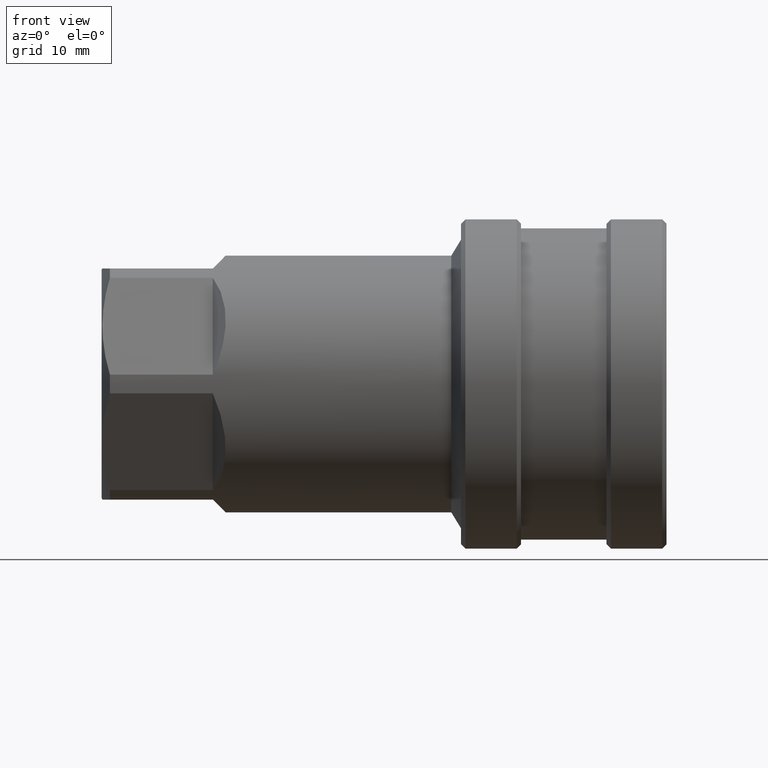
[diagram: clean part render]
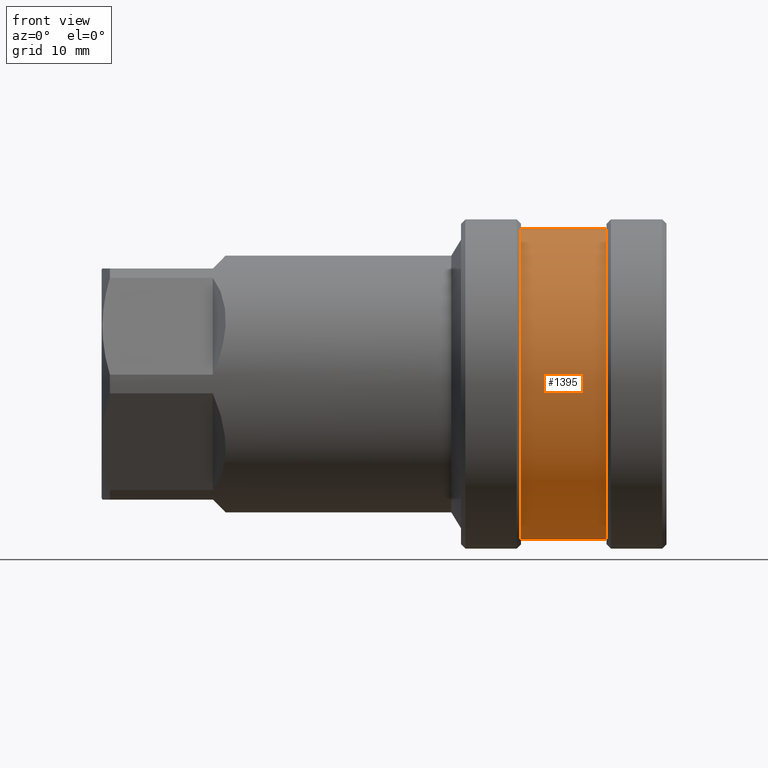
[diagram: same view with one face highlighted and labeled with its STEP entity id]
A machine part, front view. The second image highlights one B-rep face of the part: STEP entity #1395.
In plain terms, the highlighted cylindrical surface (partial cylindrical patch) has radius 18.1782 mm, axis along (-1, 0, -0).
Its self-contained STEP definition (entity closure, byte-faithful):
#207 = AXIS2_PLACEMENT_3D ( 'NONE', #3661, #3632, #1067 ) ;
#411 = VERTEX_POINT ( 'NONE', #1464 ) ;
#486 = CARTESIAN_POINT ( 'NONE',  ( 201807.9763805929106, 201918.9340169888164, 4.997625345963063519E-10 ) ) ;
#627 = ORIENTED_EDGE ( 'NONE', *, *, #683, .F. ) ;
#683 = EDGE_CURVE ( 'NONE', #5334, #411, #2133, .T. ) ;
#693 = AXIS2_PLACEMENT_3D ( 'NONE', #1978, #2774, #5380 ) ;
#794 = EDGE_CURVE ( 'NONE', #5334, #4035, #2818, .T. ) ;
#880 = CARTESIAN_POINT ( 'NONE',  ( 201866.9763805929106, 201918.9340169888164, -18.17823721951364391 ) ) ;
#1067 = DIRECTION ( 'NONE',  ( 0.000000000000000000, 0.000000000000000000, 1.000000000000000000 ) ) ;
#1274 = EDGE_LOOP ( 'NONE', ( #627, #1321, #1424, #2912 ) ) ;
#1321 = ORIENTED_EDGE ( 'NONE', *, *, #794, .T. ) ;
#1395 = ADVANCED_FACE ( 'NONE', ( #4398 ), #4940, .T. ) ;
#1424 = ORIENTED_EDGE ( 'NONE', *, *, #2417, .T. ) ;
#1464 = CARTESIAN_POINT ( 'NONE',  ( 201856.9763805929397, 201918.9340169888164, -18.17823721951360838 ) ) ;
#1635 = DIRECTION ( 'NONE',  ( -1.000000000000000000, 3.733948038163713664E-16, -1.743219798561495170E-15 ) ) ;
#1978 = CARTESIAN_POINT ( 'NONE',  ( 201866.9763805929106, 201918.9340169888164, 4.995592221149215547E-10 ) ) ;
#2104 = CARTESIAN_POINT ( 'NONE',  ( 201807.9763805929106, 201918.9340169888164, -18.17823721951342009 ) ) ;
#2133 = LINE ( 'NONE', #2104, #3171 ) ;
#2257 = DIRECTION ( 'NONE',  ( 0.000000000000000000, 0.000000000000000000, 1.000000000000000000 ) ) ;
#2417 = EDGE_CURVE ( 'NONE', #4035, #4575, #2684, .T. ) ;
#2488 = EDGE_CURVE ( 'NONE', #411, #4575, #2961, .T. ) ;
#2684 = LINE ( 'NONE', #3600, #4774 ) ;
#2774 = DIRECTION ( 'NONE',  ( -1.000000000000000000, 3.733948038163713664E-16, -1.743219798561495170E-15 ) ) ;
#2818 = CIRCLE ( 'NONE', #693, 18.17823722001318387 ) ;
#2912 = ORIENTED_EDGE ( 'NONE', *, *, #2488, .F. ) ;
#2961 = CIRCLE ( 'NONE', #207, 18.17823722001318387 ) ;
#3171 = VECTOR ( 'NONE', #1635, 1000.000000000000000 ) ;
#3490 = DIRECTION ( 'NONE',  ( -1.000000000000000000, 3.733948038163713664E-16, -1.743219798561495170E-15 ) ) ;
#3570 = DIRECTION ( 'NONE',  ( -1.000000000000000000, 3.733948038163713664E-16, -1.743219798561495170E-15 ) ) ;
#3600 = CARTESIAN_POINT ( 'NONE',  ( 201807.9763805929106, 201918.9340169888164, 18.17823722051294766 ) ) ;
#3632 = DIRECTION ( 'NONE',  ( -1.000000000000000000, 3.733948038163713664E-16, -1.743219798561495170E-15 ) ) ;
#3661 = CARTESIAN_POINT ( 'NONE',  ( 201856.9763805929397, 201918.9340169888164, 4.995936818575290703E-10 ) ) ;
#3820 = CARTESIAN_POINT ( 'NONE',  ( 201866.9763805929106, 201918.9340169888164, 18.17823722051274160 ) ) ;
#4035 = VERTEX_POINT ( 'NONE', #3820 ) ;
#4398 = FACE_OUTER_BOUND ( 'NONE', #1274, .T. ) ;
#4575 = VERTEX_POINT ( 'NONE', #4737 ) ;
#4737 = CARTESIAN_POINT ( 'NONE',  ( 201856.9763805929397, 201918.9340169888164, 18.17823722051277713 ) ) ;
#4774 = VECTOR ( 'NONE', #3490, 1000.000000000000000 ) ;
#4940 = CYLINDRICAL_SURFACE ( 'NONE', #5156, 18.17823722001318387 ) ;
#5156 = AXIS2_PLACEMENT_3D ( 'NONE', #486, #3570, #2257 ) ;
#5334 = VERTEX_POINT ( 'NONE', #880 ) ;
#5380 = DIRECTION ( 'NONE',  ( 0.000000000000000000, 0.000000000000000000, 1.000000000000000000 ) ) ;